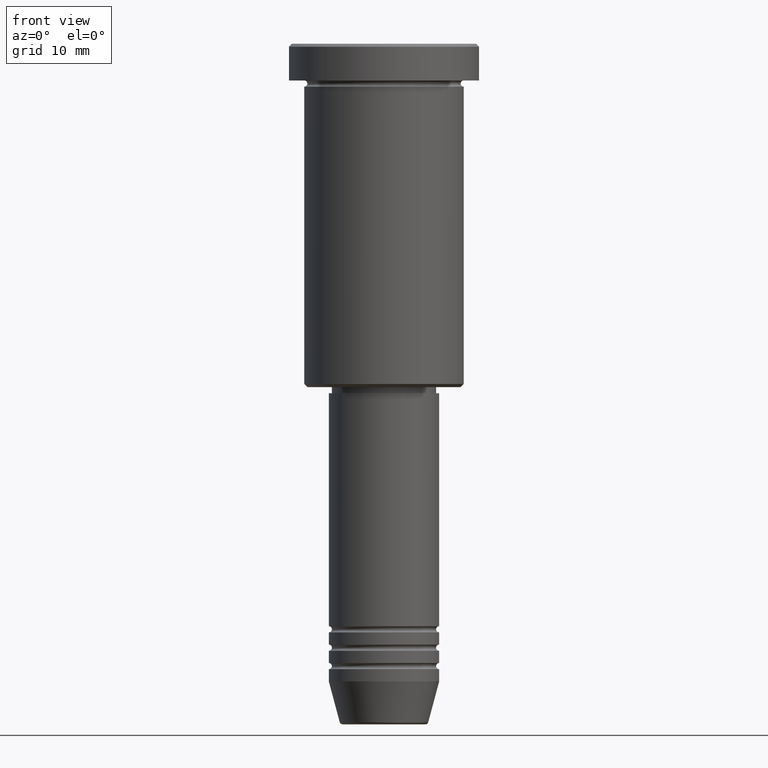
[diagram: clean part render]
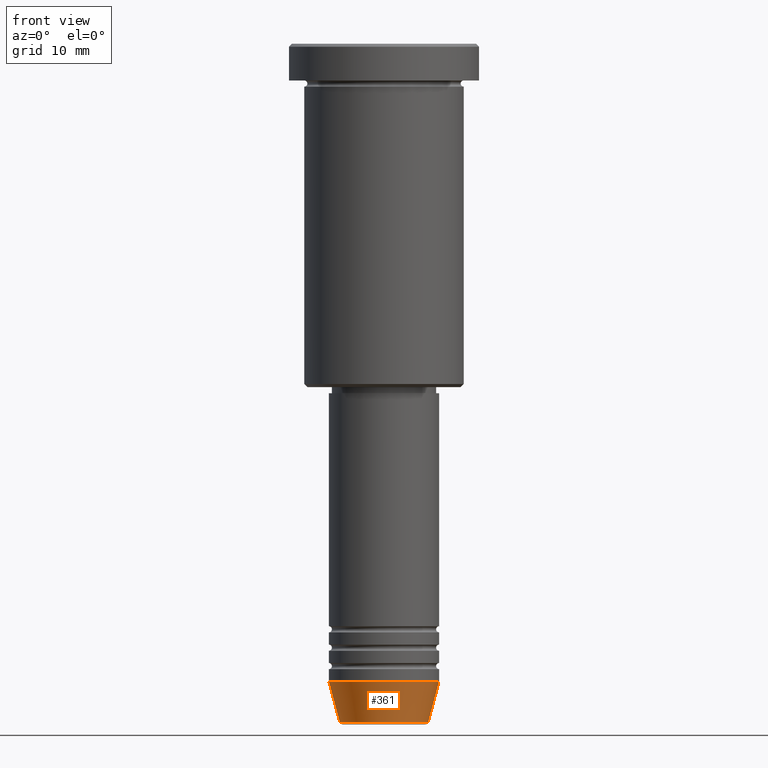
[diagram: same view with one face highlighted and labeled with its STEP entity id]
A machine part, front view. The second image highlights one B-rep face of the part: STEP entity #361.
In plain terms, the highlighted conical surface has half-angle 15 deg.
Its self-contained STEP definition (entity closure, byte-faithful):
#6 = AXIS2_PLACEMENT_3D ( 'NONE', #78, #369, #443 ) ;
#27 = CARTESIAN_POINT ( 'NONE',  ( -9.000000000000000000, 1.102182119232617714E-15, -104.0000000000000142 ) ) ;
#78 = CARTESIAN_POINT ( 'NONE',  ( 0.000000000000000000, 0.000000000000000000, -104.0000000000000142 ) ) ;
#91 = FACE_OUTER_BOUND ( 'NONE', #126, .T. ) ;
#126 = EDGE_LOOP ( 'NONE', ( #657, #800, #807, #752 ) ) ;
#129 = DIRECTION ( 'NONE',  ( -0.2588190451025213501, 3.169619151431772337E-17, 0.9659258262890680902 ) ) ;
#138 = DIRECTION ( 'NONE',  ( 0.2588190451025213501, 0.000000000000000000, 0.9659258262890680902 ) ) ;
#146 = CARTESIAN_POINT ( 'NONE',  ( 7.223655072137197486, 0.000000000000000000, -110.6294095225512564 ) ) ;
#171 = EDGE_CURVE ( 'NONE', #515, #984, #263, .T. ) ;
#209 = LINE ( 'NONE', #27, #353 ) ;
#213 = CARTESIAN_POINT ( 'NONE',  ( -9.000000000000000000, 1.102182119232617714E-15, -104.0000000000000142 ) ) ;
#234 = CARTESIAN_POINT ( 'NONE',  ( 0.000000000000000000, 0.000000000000000000, -110.6294095225512564 ) ) ;
#235 = LINE ( 'NONE', #692, #830 ) ;
#263 = CIRCLE ( 'NONE', #506, 7.223655072137197486 ) ;
#274 = CARTESIAN_POINT ( 'NONE',  ( 0.000000000000000000, 0.000000000000000000, -104.0000000000000142 ) ) ;
#353 = VECTOR ( 'NONE', #129, 1000.000000000000000 ) ;
#359 = DIRECTION ( 'NONE',  ( -0.000000000000000000, -0.000000000000000000, 1.000000000000000000 ) ) ;
#361 = ADVANCED_FACE ( 'NONE', ( #91 ), #904, .T. ) ;
#369 = DIRECTION ( 'NONE',  ( -0.000000000000000000, -0.000000000000000000, 1.000000000000000000 ) ) ;
#432 = EDGE_CURVE ( 'NONE', #515, #910, #209, .T. ) ;
#443 = DIRECTION ( 'NONE',  ( 1.000000000000000000, 0.000000000000000000, 0.000000000000000000 ) ) ;
#506 = AXIS2_PLACEMENT_3D ( 'NONE', #234, #768, #1128 ) ;
#515 = VERTEX_POINT ( 'NONE', #772 ) ;
#528 = VERTEX_POINT ( 'NONE', #529 ) ;
#529 = CARTESIAN_POINT ( 'NONE',  ( 9.000000000000000000, 0.000000000000000000, -104.0000000000000142 ) ) ;
#657 = ORIENTED_EDGE ( 'NONE', *, *, #432, .F. ) ;
#692 = CARTESIAN_POINT ( 'NONE',  ( 9.000000000000000000, 0.000000000000000000, -104.0000000000000142 ) ) ;
#752 = ORIENTED_EDGE ( 'NONE', *, *, #762, .F. ) ;
#762 = EDGE_CURVE ( 'NONE', #910, #528, #997, .T. ) ;
#768 = DIRECTION ( 'NONE',  ( -0.000000000000000000, -0.000000000000000000, 1.000000000000000000 ) ) ;
#772 = CARTESIAN_POINT ( 'NONE',  ( -7.223655072137198374, 9.934123627281771026E-16, -110.6294095225512564 ) ) ;
#800 = ORIENTED_EDGE ( 'NONE', *, *, #171, .T. ) ;
#807 = ORIENTED_EDGE ( 'NONE', *, *, #1084, .T. ) ;
#830 = VECTOR ( 'NONE', #138, 1000.000000000000000 ) ;
#904 = CONICAL_SURFACE ( 'NONE', #6, 9.000000000000000000, 0.2617993877991500740 ) ;
#910 = VERTEX_POINT ( 'NONE', #213 ) ;
#984 = VERTEX_POINT ( 'NONE', #146 ) ;
#997 = CIRCLE ( 'NONE', #1092, 9.000000000000000000 ) ;
#998 = DIRECTION ( 'NONE',  ( 1.000000000000000000, 0.000000000000000000, 0.000000000000000000 ) ) ;
#1084 = EDGE_CURVE ( 'NONE', #984, #528, #235, .T. ) ;
#1092 = AXIS2_PLACEMENT_3D ( 'NONE', #274, #359, #998 ) ;
#1128 = DIRECTION ( 'NONE',  ( 1.000000000000000000, 0.000000000000000000, 0.000000000000000000 ) ) ;